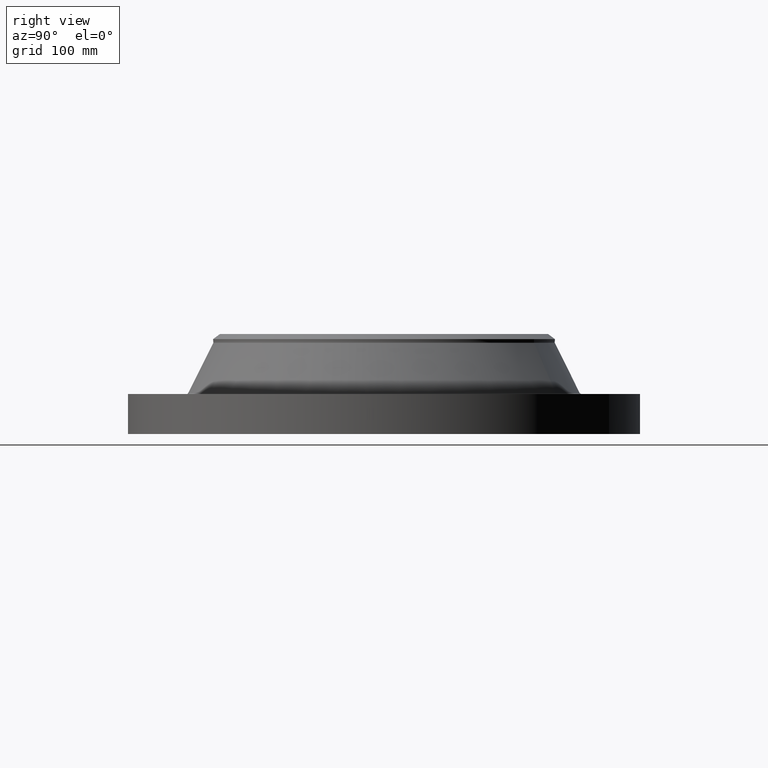
[diagram: clean part render]
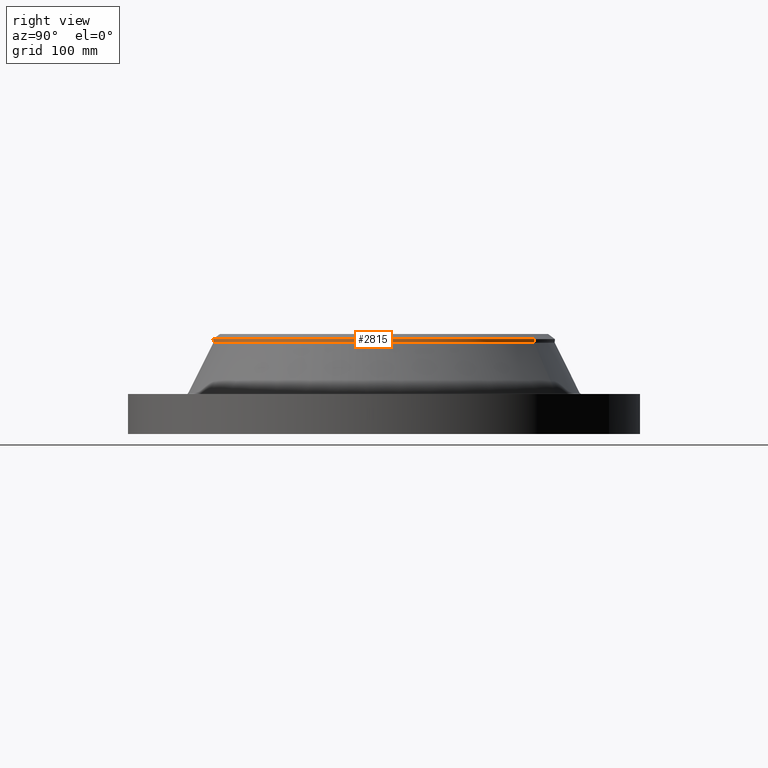
[diagram: same view with one face highlighted and labeled with its STEP entity id]
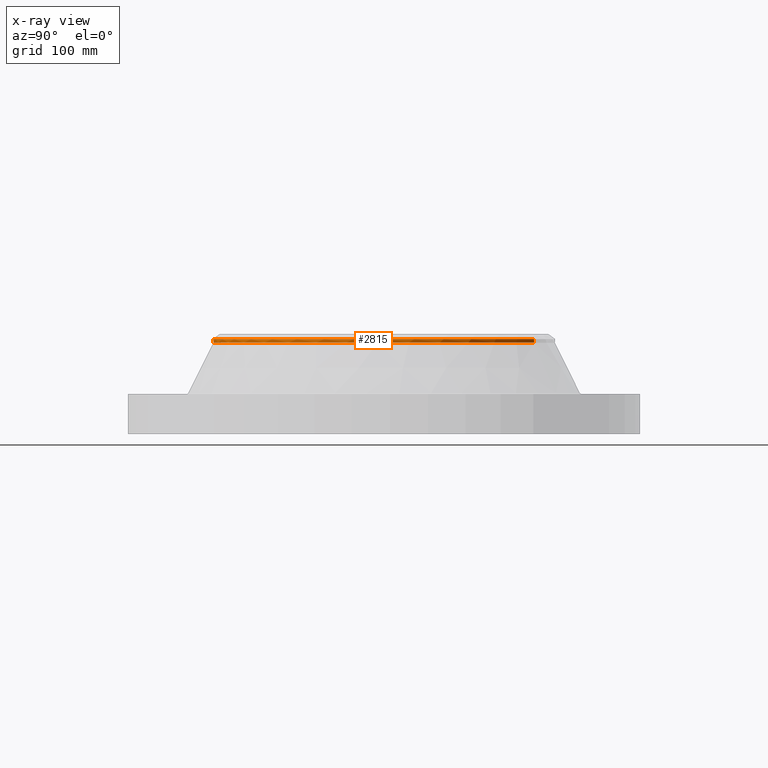
[diagram: x-ray of the same camera — body ghosted, the highlighted face saturated]
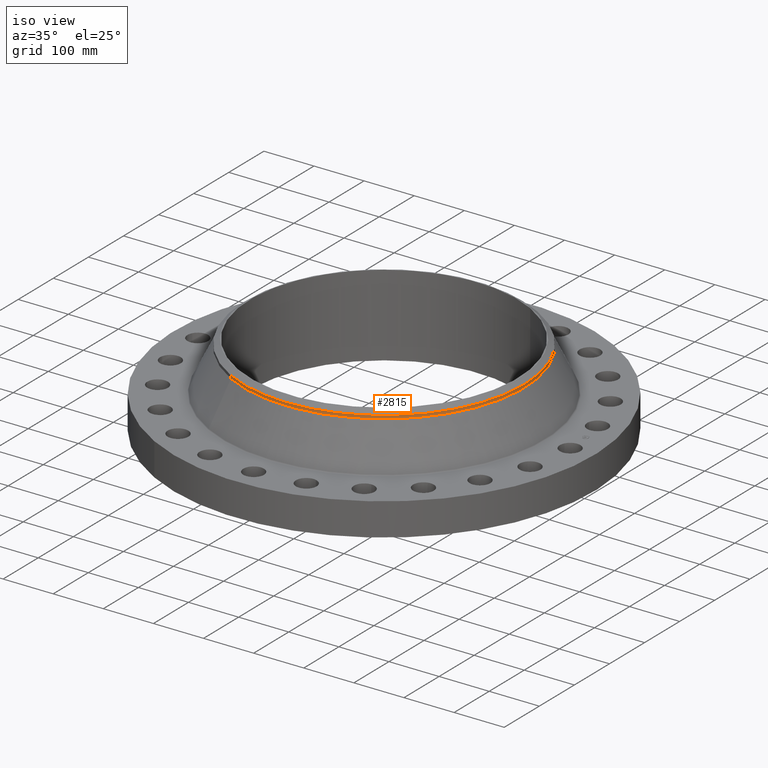
[diagram: same view with one face highlighted and labeled with its STEP entity id]
A machine part, right view. The second image highlights one B-rep face of the part: STEP entity #2815.
The next image is the same camera in x-ray: the body ghosted, the highlighted face saturated — about 0% of this face is hidden behind the body in this view.
A second angle (iso view) of the same face is appended — the face is thin or edge-on in the first view.
In plain terms, the highlighted cylindrical surface (partial cylindrical patch) has radius 279.4 mm, axis along (-0, 0, -1).
Its self-contained STEP definition (entity closure, byte-faithful):
#2514=AXIS2_PLACEMENT_3D('Circle Axis2P3D',#2512,#2513,$) ;
#2794=AXIS2_PLACEMENT_3D('Cylinder Axis2P3D',#2791,#2792,#2793) ;
#2798=AXIS2_PLACEMENT_3D('Circle Axis2P3D',#2796,#2797,$) ;
#2805=AXIS2_PLACEMENT_3D('Circle Axis2P3D',#2803,#2804,$) ;
#2478=CARTESIAN_POINT('Vertex',(-5.27368092465,-9.65340818079,5.87053548147)) ;
#2485=CARTESIAN_POINT('Vertex',(5.27368092465,9.6534081808,5.87053548145)) ;
#2512=CARTESIAN_POINT('Axis2P3D Location',(0.,0.,5.87053548147)) ;
#2750=CARTESIAN_POINT('Line Origine',(5.27368092465,9.65340818079,5.9886457177)) ;
#2754=CARTESIAN_POINT('Vertex',(5.27368092465,9.65340818079,6.10675595393)) ;
#2757=CARTESIAN_POINT('Line Origine',(-5.27368092465,-9.65340818079,5.9886457177)) ;
#2761=CARTESIAN_POINT('Vertex',(-5.27368092465,-9.65340818079,6.10675595393)) ;
#2791=CARTESIAN_POINT('Axis2P3D Location',(0.,0.,3.21500000001)) ;
#2796=CARTESIAN_POINT('Axis2P3D Location',(0.,0.,6.10675595391)) ;
#2800=CARTESIAN_POINT('Vertex',(5.27368092465,-9.65340818079,6.10675595393)) ;
#2803=CARTESIAN_POINT('Axis2P3D Location',(0.,0.,6.10675595393)) ;
#2513=DIRECTION('Axis2P3D Direction',(-0.,0.,-0.0393700787402)) ;
#2751=DIRECTION('Vector Direction',(0.,0.,-0.0393700787402)) ;
#2758=DIRECTION('Vector Direction',(0.,0.,-0.0393700787402)) ;
#2792=DIRECTION('Axis2P3D Direction',(-0.,0.,-0.0393700787402)) ;
#2793=DIRECTION('Axis2P3D XDirection',(0.0188750212049,0.0345504945626,0.)) ;
#2797=DIRECTION('Axis2P3D Direction',(-0.,0.,-0.0393700787402)) ;
#2804=DIRECTION('Axis2P3D Direction',(-0.,0.,-0.0393700787402)) ;
#2752=VECTOR('Line Direction',#2751,0.0393700787402) ;
#2759=VECTOR('Line Direction',#2758,0.0393700787402) ;
#2809=ORIENTED_EDGE('',*,*,#2763,.F.) ;
#2810=ORIENTED_EDGE('',*,*,#2516,.F.) ;
#2811=ORIENTED_EDGE('',*,*,#2756,.T.) ;
#2812=ORIENTED_EDGE('',*,*,#2802,.F.) ;
#2813=ORIENTED_EDGE('',*,*,#2807,.T.) ;
#2815=ADVANCED_FACE('PartBody',(#2814),#2795,.T.) ;
#2515=CIRCLE('generated circle',#2514,11.) ;
#2799=CIRCLE('generated circle',#2798,11.) ;
#2806=CIRCLE('generated circle',#2805,11.) ;
#2795=CYLINDRICAL_SURFACE('generated cylinder',#2794,11.) ;
#2516=EDGE_CURVE('',#2486,#2479,#2515,.T.) ;
#2756=EDGE_CURVE('',#2486,#2755,#2753,.F.) ;
#2763=EDGE_CURVE('',#2479,#2762,#2760,.F.) ;
#2802=EDGE_CURVE('',#2801,#2755,#2799,.F.) ;
#2807=EDGE_CURVE('',#2801,#2762,#2806,.T.) ;
#2808=EDGE_LOOP('',(#2809,#2810,#2811,#2812,#2813)) ;
#2814=FACE_OUTER_BOUND('',#2808,.T.) ;
#2753=LINE('Line',#2750,#2752) ;
#2760=LINE('Line',#2757,#2759) ;
#2479=VERTEX_POINT('',#2478) ;
#2486=VERTEX_POINT('',#2485) ;
#2755=VERTEX_POINT('',#2754) ;
#2762=VERTEX_POINT('',#2761) ;
#2801=VERTEX_POINT('',#2800) ;